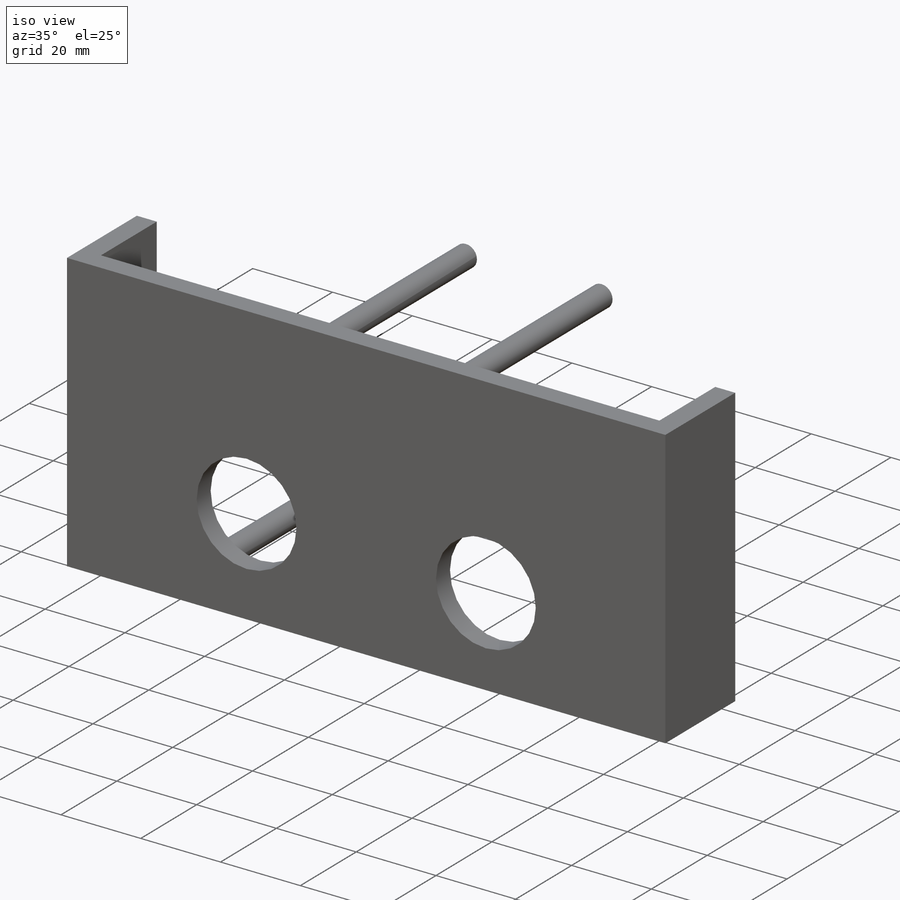
[diagram: iso view]
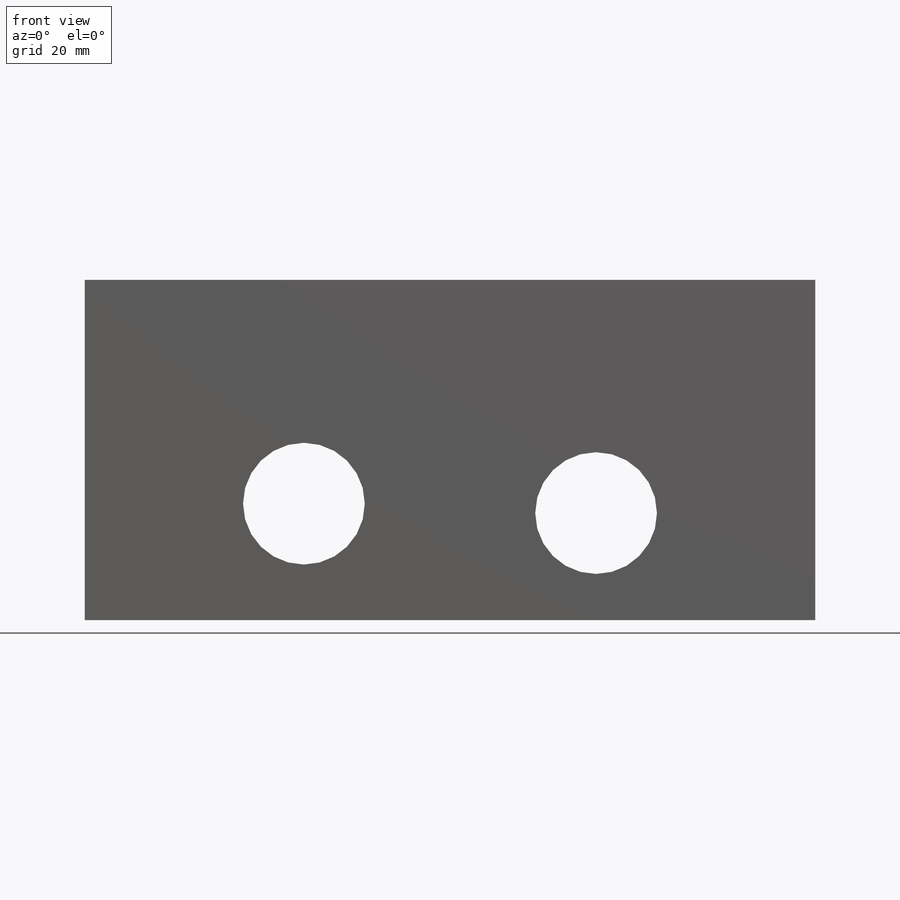
[diagram: front view]
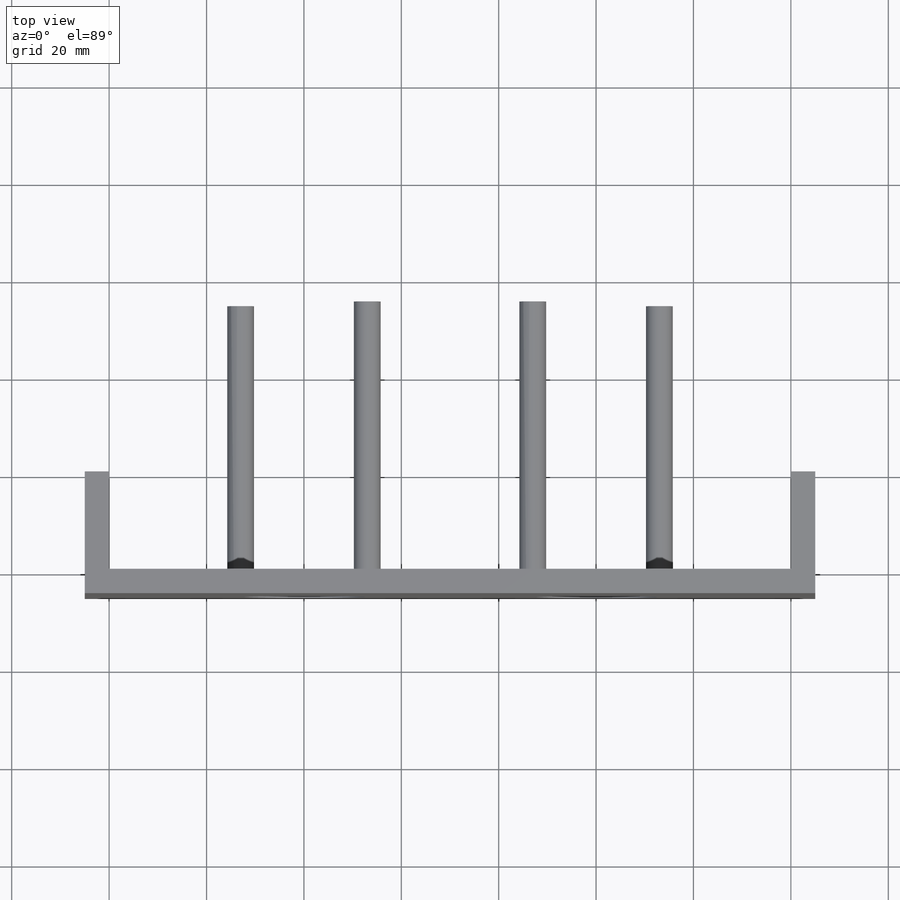
[diagram: top view]
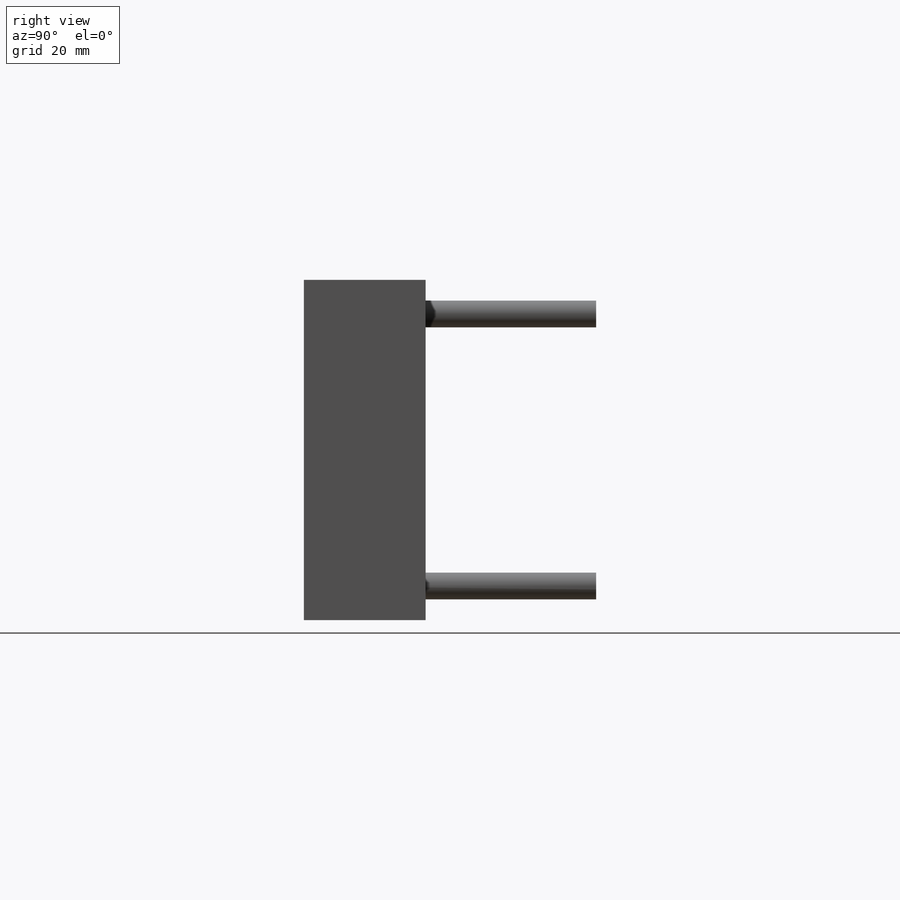
[diagram: right view]
SOLIDWORKS PART (.sldprt)
format: sldprt  version: not decoded by parser v0  size: 220,672 bytes
history: native  units: mm
features: sketch x8, extrude x7, plane x3, material x1, cut_extrude x1 (+9 scaffold rows collapsed)
feature tree (29):
  scaffold x9  (default folders/planes/origin — collapsed)
  material  "Matériau <non spécifié>"
  plane  "Plan de face"
  plane  "Plan de dessus"
  plane  "Plan de droite"
  sketch  "Esquisse1"  dims[D1=69.87mm D2=100.0mm]
  extrude  "Boss.-Extru.1"  Depth=5mm
  sketch  "Esquisse2"  dims[c1.D1=5.5mm c1.D2=5.5mm c1.D3=5.5mm c1.D4=5.5mm c1.D15=25.0mm c1.D16=25.0mm c1.D5=7.0mm c1.D6=~11.470608mm c2.D6=90.0deg c3.D6=~11.470608mm c4.D6=90.0deg c5.D6=7.0mm c5.D7=7.0mm c5.D8=~10.41995mm c6.D8=90.0deg c7.D8=~10.41995mm c8.D8=90.0deg c9.D8=7.0mm c9.D9=40.0mm c9.D10=40.0mm c9.D11=7.0mm c9.D12=7.0mm c9.D13=7.0mm c9.D14=7.0mm c9.D17=20.0mm c9.D18=20.0mm]
  cut_extrude  "Enlèv. mat.-Extru.1"  Depth=5mm
  sketch  "Esquisse3"  dims[D1=25.0mm D2=25.0mm]
  extrude  "Boss.-Extru.2"  Depth=5mm
  sketch  "Esquisse4"  dims[D1=5.0mm D2=5.0mm]
  extrude  "Boss.-Extru.3"  Depth=20mm
  extrude  "Boss.-Extru.4"  [1 undecoded]
  sketch  "Esquisse2<3>"  dims[D1=60.0mm]
  extrude  "Boss.-Extru.5"  [1 undecoded]
  sketch  "Esquisse2<4>"  dims[D1=60.0mm]
  extrude  "Boss.-Extru.6"  [1 undecoded]
  sketch  "Esquisse2<5>"  dims[D1=60.0mm]
  extrude  "Boss.-Extru.7"  [1 undecoded]
  sketch  "Esquisse2<6>"  dims[D1=60.0mm]
decode coverage: 12 of 16 modeling features carry decoded parameters
note: ~ marks probable driven/reference dimensions
note: 4 parameter values undecoded
summary: no parameter record found for 4 features
note: suppression state not decoded; provenance and decode notes live in map.json
